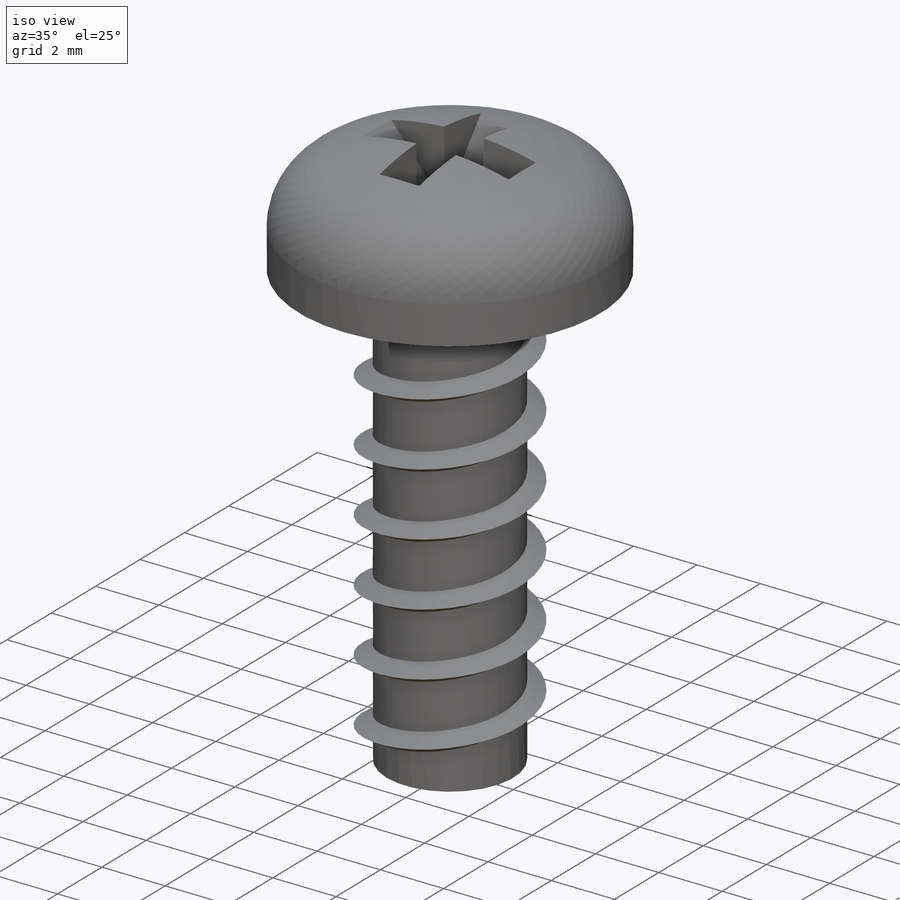
[diagram: iso view]
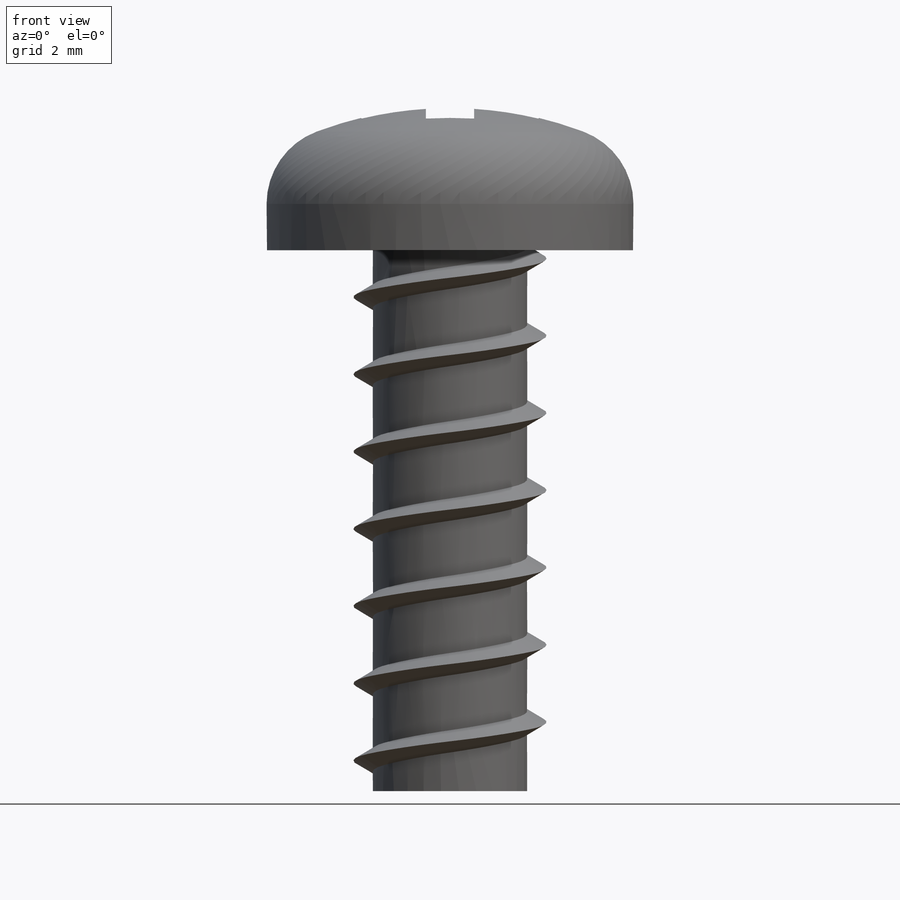
[diagram: front view]
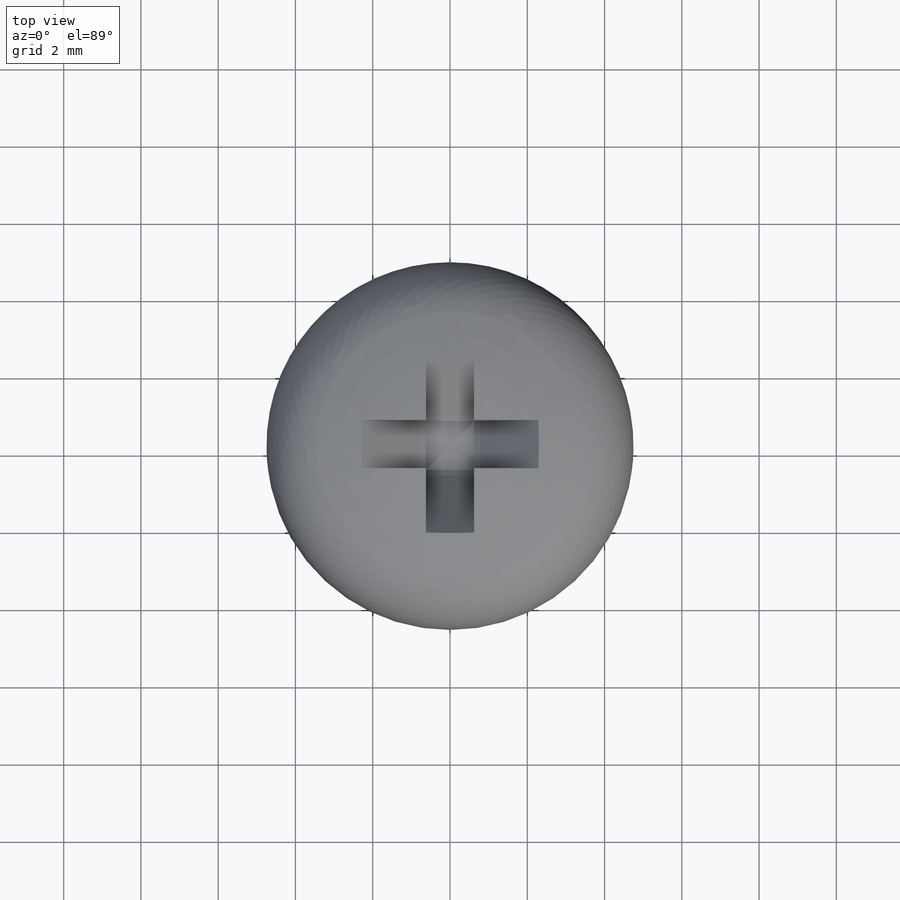
[diagram: top view]
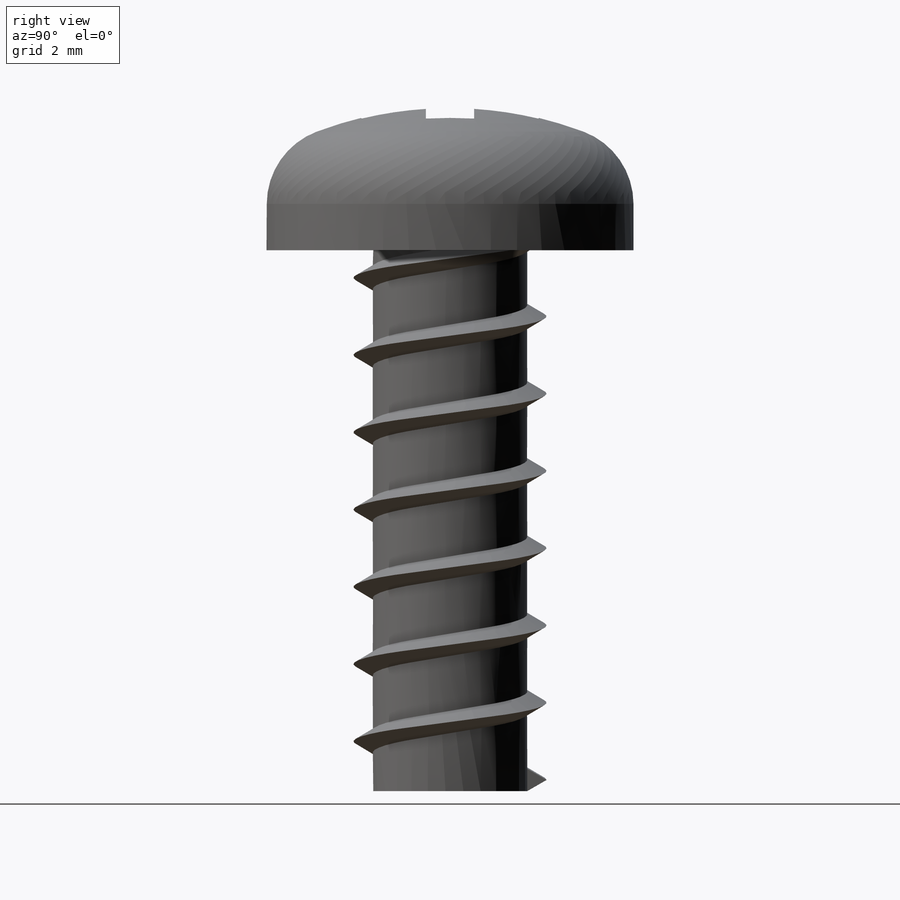
[diagram: right view]
SOLIDWORKS PART (.sldprt)
format: sldprt  version: not decoded by parser v0  size: 348,160 bytes
history: native  units: mm
features: sketch x4, plane x3, material x1, revolve x1, cut_extrude x1, pattern_circular x1, helix x1, sweep x1 (+8 scaffold rows collapsed)
feature tree (21):
  scaffold x8  (default folders/planes/origin — collapsed)
  material  "Matériau <non spécifié>"
  plane  "Plan de face"
  plane  "Plan de dessus"
  plane  "Plan de droite"
  sketch  "Esquisse1"  dims[c1.D2=~4.741102mm c1.D3=2.0mm c1.D1=9.5mm c2.D2=3.7mm c2.D4=1.2mm c2.D5=~5.176319mm c2.D6=0.85mm c3.D5=4.0mm c3.D6=14.0mm]
  revolve  "Révolution3"  Angle=360deg
  sketch  "Esquisse2"  dims[c1.D1=~1.31644mm c1.D3=1.0mm c2.D1=2.5mm c2.D2=2.3mm]
  cut_extrude  "Enlèv. mat.-Extru.1"  Depth=1.25mm
  pattern_circular  "Répétition circulaire1"  Count=4 Angle=360deg
  sketch  "Esquisse3"  dims[c1.D1=2.5mm c1.D2=0.375mm c2.D2=60.0deg]
  sketch  "Esquisse5"
  helix  "Hélice/Spirale1"  Pitch=14mm
  sweep  "Balayage2"
decode coverage: 7 of 9 modeling features carry decoded parameters
note: ~ marks probable driven/reference dimensions
note: suppression state not decoded; provenance and decode notes live in map.json
